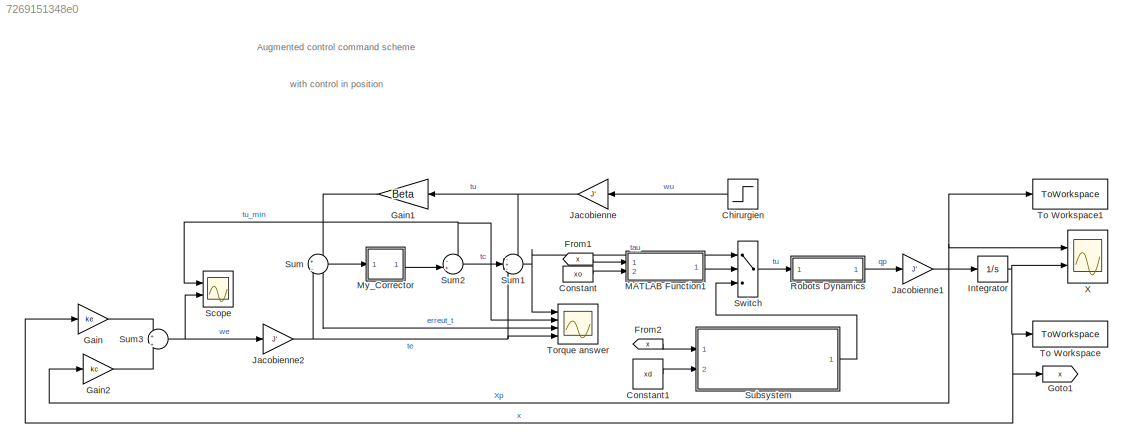
MODEL slx_7269151348e0
KIND model
CONFIG AbsTol = auto
CONFIG EnableMultiTasking = off
CONFIG FixedStep = auto
CONFIG MaxStep = auto
CONFIG MinStep = auto
CONFIG RelTol = 1e-3
CONFIG SampleTimeConstraint = Unconstrained
CONFIG SolverName = FixedStepAuto
CONFIG StartTime = 0.0
CONFIG StopTime = 10
BLOCK [Step] Chirurgien
  After = wu
  Before = w0
  SampleTime = 0
  VectorParams1D = off
BLOCK [Constant] Constant
  Value = xo
  VectorParams1D = off
BLOCK [Constant] Constant1
  Value = xd
BLOCK [From] From1
  GotoTag = x
BLOCK [From] From2
  GotoTag = x
BLOCK [Gain] Gain
  Gain = ke
  Multiplication = Matrix(K*u)
BLOCK [Gain] Gain1
  Gain = Beta
  Multiplication = Matrix(K*u)
  NameLocation = top
BLOCK [Gain] Gain2
  Gain = kc
  Multiplication = Matrix(K*u)
BLOCK [Goto] Goto1
  GotoTag = x
BLOCK [Integrator] Integrator
  InitialCondition = x
  Ports = [1, 1]
BLOCK [Gain] Jacobienne
  Gain = J'
  Multiplication = Matrix(K*u)
BLOCK [Gain] Jacobienne1
  Gain = J'
  Multiplication = Matrix(K*u)
BLOCK [Gain] Jacobienne2
  Gain = J'
  Multiplication = Matrix(K*u)
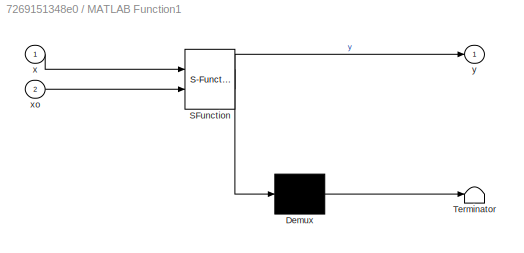
BLOCK [SubSystem] MATLAB Function1
  ErrorFcn = Stateflow.Translate.translate
  PermitHierarchicalResolution = ExplicitOnly
  Ports = [2, 1]
  RequestExecContextInheritance = off
  SFBlockType = MATLAB Function
  TreatAsAtomicUnit = on
BLOCK [Demux] MATLAB Function1/ Demux 
  Outputs = 1
  Ports = [1, 1]
BLOCK [S-Function] MATLAB Function1/ SFunction 
  EnableBusSupport = on
  FunctionName = sf_sfun
  PortCounts = [2 2]
  Ports = [2, 2]
  SFcnIsStateOwnerBlock = off
  SFunctionDeploymentMode = off
  Tag = Stateflow S-Function 1
BLOCK [Terminator] MATLAB Function1/ Terminator 
BLOCK [Inport] MATLAB Function1/x
BLOCK [Inport] MATLAB Function1/xo
  Port = 2
BLOCK [Outport] MATLAB Function1/y
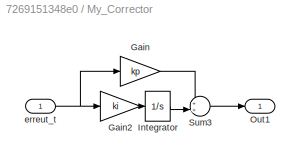
BLOCK [SubSystem] My_Corrector
  Ports = [1, 1]
  RequestExecContextInheritance = off
BLOCK [Gain] My_Corrector/Gain
  Gain = kp
  Multiplication = Matrix(K*u)
BLOCK [Gain] My_Corrector/Gain2
  Gain = ki
  Multiplication = Matrix(K*u)
BLOCK [Integrator] My_Corrector/Integrator
  InitialCondition = w0
  Ports = [1, 1]
BLOCK [Outport] My_Corrector/Out1
BLOCK [Sum] My_Corrector/Sum3
  Inputs = ++|
  Ports = [2, 1]
BLOCK [Inport] My_Corrector/erreut_t
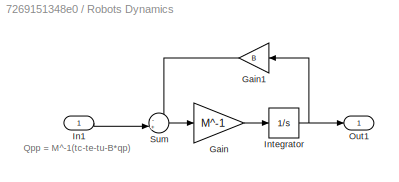
BLOCK [SubSystem] Robots Dynamics
  Ports = [1, 1]
  RequestExecContextInheritance = off
BLOCK [Gain] Robots Dynamics/Gain
  Gain = M^-1
  Multiplication = Matrix(K*u)
BLOCK [Gain] Robots Dynamics/Gain1
  Gain = B
  Multiplication = Matrix(K*u)
  NameLocation = top
BLOCK [Inport] Robots Dynamics/In1
BLOCK [Integrator] Robots Dynamics/Integrator
  Ports = [1, 1]
BLOCK [Outport] Robots Dynamics/Out1
BLOCK [Sum] Robots Dynamics/Sum
  Inputs = -+|
  Ports = [2, 1]
BLOCK [Scope] Scope
  Floating = off
  NumInputPorts = 2
  Ports = [2]
  ScopeSpecificationString = Simulink.scopes.TimeScopeBlockCfg('CurrentConfiguration', extmgr.ConfigurationSet(extmgr.Configuration('Core','General UI',true),extmgr.Configuration('Core','Source UI',true),extmgr.Configuration('Sources','WiredSimulink',true,'DataLoggingVariableName','ScopeData2'),extmgr.Configuration('Visuals','Time Domain',true,'SerializedDisplays',{struct('MinYLimReal','-0.06224','MaxYLimReal','0.56017','YLab...<+1648ch>
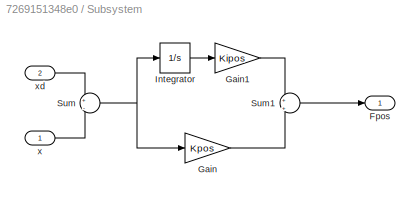
BLOCK [SubSystem] Subsystem
  Ports = [2, 1]
  RequestExecContextInheritance = off
BLOCK [Outport] Subsystem/Fpos
BLOCK [Gain] Subsystem/Gain
  Gain = Kpos
  Multiplication = Matrix(K*u)
BLOCK [Gain] Subsystem/Gain1
  Gain = Kipos
  Multiplication = Matrix(K*u)
BLOCK [Integrator] Subsystem/Integrator
  Ports = [1, 1]
BLOCK [Sum] Subsystem/Sum
  Inputs = +|-
  Ports = [2, 1]
BLOCK [Sum] Subsystem/Sum1
  Inputs = +|+
  Ports = [2, 1]
BLOCK [Inport] Subsystem/x
BLOCK [Inport] Subsystem/xd
  Port = 2
BLOCK [Sum] Sum
  Inputs = +|-
  Ports = [2, 1]
BLOCK [Sum] Sum1
  Inputs = -+-
  Ports = [3, 1]
BLOCK [Sum] Sum2
  Inputs = -+|
  Ports = [2, 1]
BLOCK [Sum] Sum3
  Inputs = +|+
  Ports = [2, 1]
BLOCK [Switch] Switch
  Criteria = u2 > Threshold
  InputSameDT = off
  SaturateOnIntegerOverflow = off
BLOCK [ToWorkspace] To Workspace
  MaxDataPoints = inf
  Ports = [1]
  SampleTime = 0.03
  VariableName = position
BLOCK [ToWorkspace] To Workspace1
  MaxDataPoints = inf
  Ports = [1]
  SampleTime = 0.03
  VariableName = speed
BLOCK [Scope] Torque answer
  Floating = off
  NumInputPorts = 4
  Ports = [4]
  ScopeSpecificationString = Simulink.scopes.TimeScopeBlockCfg('CurrentConfiguration', extmgr.ConfigurationSet(extmgr.Configuration('Core','General UI',true),extmgr.Configuration('Core','Source UI',true),extmgr.Configuration('Sources','WiredSimulink',true,'DataLoggingVariableName','ScopeData1'),extmgr.Configuration('Visuals','Time Domain',true,'SerializedDisplays',{struct('MinYLimReal','-0.44678','MaxYLimReal','0.7227','YLabe...<+1699ch>
BLOCK [Scope] X
  Floating = off
  NumInputPorts = 2
  Ports = [2]
  ScopeSpecificationString = Simulink.scopes.TimeScopeBlockCfg('CurrentConfiguration', extmgr.ConfigurationSet(extmgr.Configuration('Core','General UI',true),extmgr.Configuration('Core','Source UI',true),extmgr.Configuration('Sources','WiredSimulink',true),extmgr.Configuration('Visuals','Time Domain',true,'SerializedDisplays',{struct('MinYLimReal','-0.27659','MaxYLimReal','0.26126','YLabelReal','','MinYLimMag','0.00000','MaxY...<+2277ch>
ANNOTATION (root): Augmented control command scheme
ANNOTATION (root): with control in position
ANNOTATION Robots Dynamics: Qpp = M^-1(tc-te-tu-B*qp)
LINE Chirurgien:1 -> Jacobienne:1
LINE Constant1:1 -> Subsystem:2
LINE Constant:1 -> MATLAB Function1:2
LINE From1:1 -> MATLAB Function1:1
LINE From2:1 -> Subsystem:1
NET Gain1:1 -> Scope:1, Sum2:1, Sum:1, Torque answer:2
LINE Gain2:1 -> Sum3:2
LINE Gain:1 -> Sum3:1
NET Integrator:1 -> Gain:1, Goto1:1, To Workspace:1, X:2
NET Jacobienne1:1 -> Gain2:1, Integrator:1, To Workspace1:1, X:1
NET Jacobienne2:1 -> Sum1:3, Sum:2, Torque answer:4
NET Jacobienne:1 -> Gain1:1, Sum1:1
LINE MATLAB Function1:1 -> Switch:2
LINE My_Corrector/Gain2:1 -> My_Corrector/Integrator:1
LINE My_Corrector/Gain:1 -> My_Corrector/Sum3:1
LINE My_Corrector/Integrator:1 -> My_Corrector/Sum3:2
LINE My_Corrector/Sum3:1 -> My_Corrector/Out1:1
NET My_Corrector/erreut_t:1 -> My_Corrector/Gain2:1, My_Corrector/Gain:1
LINE My_Corrector:1 -> Sum2:2
LINE Robots Dynamics/Gain1:1 -> Robots Dynamics/Sum:1
LINE Robots Dynamics/Gain:1 -> Robots Dynamics/Integrator:1
LINE Robots Dynamics/In1:1 -> Robots Dynamics/Sum:2
NET Robots Dynamics/Integrator:1 -> Robots Dynamics/Gain1:1, Robots Dynamics/Out1:1
LINE Robots Dynamics/Sum:1 -> Robots Dynamics/Gain:1
LINE Robots Dynamics:1 -> Jacobienne1:1
LINE Subsystem/Gain1:1 -> Subsystem/Sum1:1
LINE Subsystem/Gain:1 -> Subsystem/Sum1:2
LINE Subsystem/Integrator:1 -> Subsystem/Gain1:1
LINE Subsystem/Sum1:1 -> Subsystem/Fpos:1
NET Subsystem/Sum:1 -> Subsystem/Gain:1, Subsystem/Integrator:1
LINE Subsystem/x:1 -> Subsystem/Sum:2
LINE Subsystem/xd:1 -> Subsystem/Sum:1
LINE Subsystem:1 -> Switch:3
NET Sum1:1 -> Switch:1, Torque answer:1
LINE Sum2:1 -> Sum1:2
NET Sum3:1 -> Jacobienne2:1, Scope:2
NET Sum:1 -> My_Corrector:1, Torque answer:3
LINE Switch:1 -> Robots Dynamics:1
note: NET lines group one-source signal fan-out (src -> all destinations, sorted); 1:1 wires keep LINE
CHART MATLAB Function1 states=1 transitions=1
  STATE_LABEL 'eML_blk_kernel()'
  STATE_LABEL "SCRIPT:\nfunction y = isInside(x,xo)\n% Function that calculates if the position of the robot is inside of the organ\n%x = Robot positio\n%xo = Organ Position\n\nro = 0.15; %rayon d'organe (m)\nd = sqrt((xo(1)-x(1))^2 + (xo(2)-x(2))^2);\n  \nif d <= ro\n    y = true;\n else \n    y = false;\nend\n"
CHART  states=0 transitions=0
